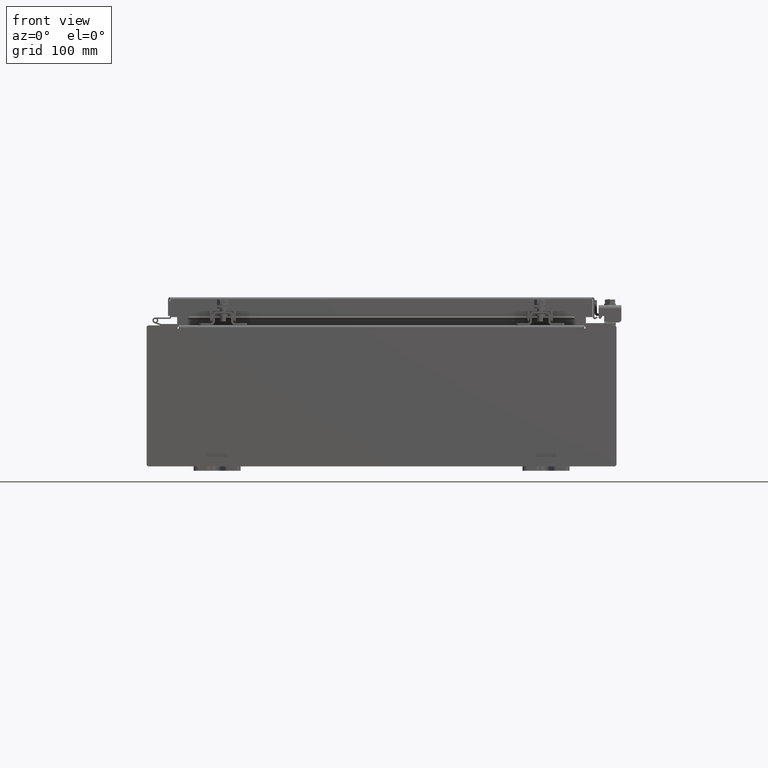
[diagram: clean part render]
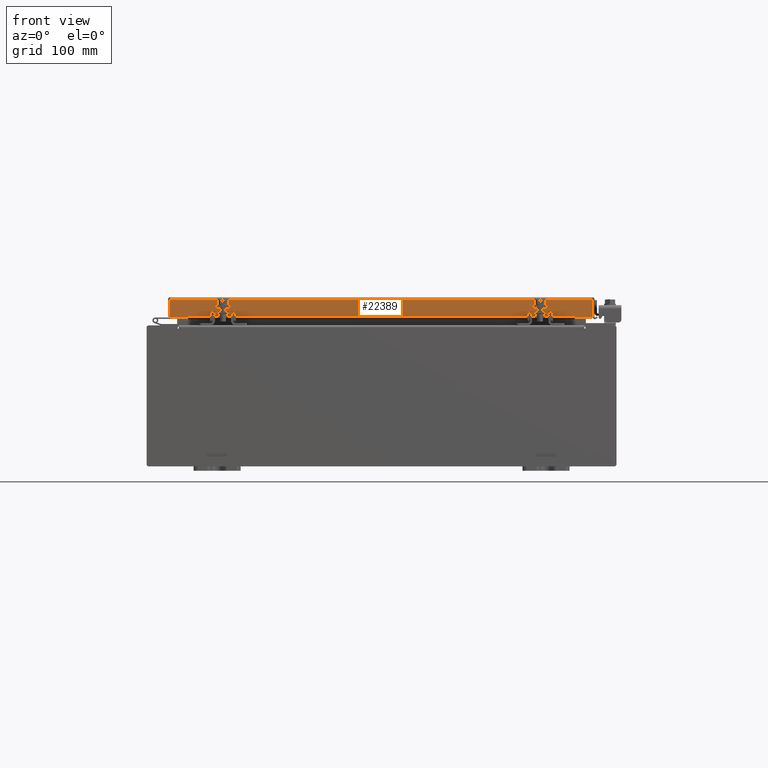
[diagram: same view with one face highlighted and labeled with its STEP entity id]
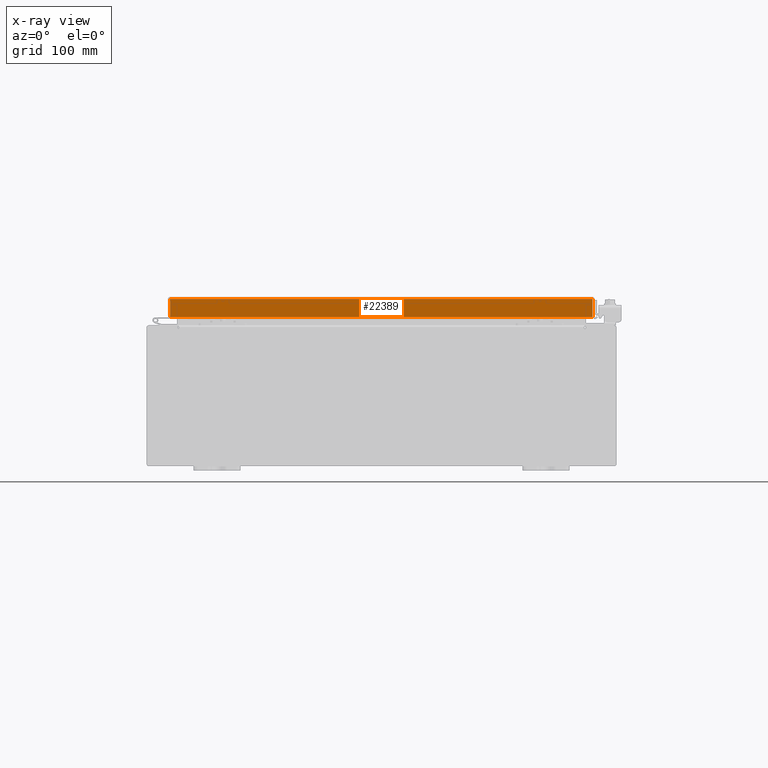
[diagram: x-ray of the same camera — body ghosted, the highlighted face saturated]
A machine part, front view. The second image highlights one B-rep face of the part: STEP entity #22389.
The next image is the same camera in x-ray: the body ghosted, the highlighted face saturated — about 0% of this face is hidden behind the body in this view.
In plain terms, the highlighted planar face has unit normal (-0, 1, -0).
Its self-contained STEP definition (entity closure, byte-faithful):
#413 = LINE ( 'NONE', #27262, #24678 ) ;
#460 = ORIENTED_EDGE ( 'NONE', *, *, #13974, .T. ) ;
#690 = ORIENTED_EDGE ( 'NONE', *, *, #15549, .F. ) ;
#1000 = DIRECTION ( 'NONE',  ( -1.000000000000000000, 0.0000000000000000000, 0.0000000000000000000 ) ) ;
#1001 = ORIENTED_EDGE ( 'NONE', *, *, #9128, .F. ) ;
#1008 = VECTOR ( 'NONE', #16131, 39.37007874015748100 ) ;
#1106 = VERTEX_POINT ( 'NONE', #2250 ) ;
#2075 = CARTESIAN_POINT ( 'NONE',  ( -8.989157864376267100, -9.093999999999999400, 2.589571694958342600E-014 ) ) ;
#2095 = PLANE ( 'NONE',  #11371 ) ;
#2250 = CARTESIAN_POINT ( 'NONE',  ( -8.989157864376267100, -9.093999999999999400, -0.08770000000000007000 ) ) ;
#3360 = VECTOR ( 'NONE', #23728, 39.37007874015748100 ) ;
#3474 = FACE_OUTER_BOUND ( 'NONE', #9861, .T. ) ;
#7649 = ORIENTED_EDGE ( 'NONE', *, *, #18676, .F. ) ;
#7721 = LINE ( 'NONE', #2075, #19127 ) ;
#7805 = LINE ( 'NONE', #18445, #1008 ) ;
#9128 = EDGE_CURVE ( 'NONE', #18207, #22903, #7805, .T. ) ;
#9501 = LINE ( 'NONE', #17052, #20931 ) ;
#9861 = EDGE_LOOP ( 'NONE', ( #690, #460, #25992, #7649, #1001, #12471 ) ) ;
#11371 = AXIS2_PLACEMENT_3D ( 'NONE', #24829, #27207, #13532 ) ;
#11646 = CARTESIAN_POINT ( 'NONE',  ( -8.989157864376267100, -9.094000000000001200, -0.8499999999999975400 ) ) ;
#12145 = VECTOR ( 'NONE', #1000, 39.37007874015748100 ) ;
#12471 = ORIENTED_EDGE ( 'NONE', *, *, #28260, .F. ) ;
#12544 = VERTEX_POINT ( 'NONE', #25323 ) ;
#13016 = CARTESIAN_POINT ( 'NONE',  ( 8.239157864376267100, -9.093999999999999400, -0.8500000000000006400 ) ) ;
#13532 = DIRECTION ( 'NONE',  ( 0.0000000000000000000, 2.818880942772360100E-015, 1.000000000000000000 ) ) ;
#13589 = DIRECTION ( 'NONE',  ( -0.0000000000000000000, -2.818880942772360100E-015, -1.000000000000000000 ) ) ;
#13659 = EDGE_CURVE ( 'NONE', #12544, #18479, #9501, .T. ) ;
#13974 = EDGE_CURVE ( 'NONE', #1106, #18479, #7721, .T. ) ;
#14642 = CARTESIAN_POINT ( 'NONE',  ( 8.239157864376268800, -9.093999999999999400, -0.8500000000000006400 ) ) ;
#15434 = LINE ( 'NONE', #16835, #3360 ) ;
#15549 = EDGE_CURVE ( 'NONE', #1106, #22318, #15434, .T. ) ;
#16131 = DIRECTION ( 'NONE',  ( -1.000000000000000000, -0.0000000000000000000, 1.203722403024570700E-016 ) ) ;
#16835 = CARTESIAN_POINT ( 'NONE',  ( 9.077999999999999400, -9.093999999999999400, -0.08770000000000007000 ) ) ;
#17052 = CARTESIAN_POINT ( 'NONE',  ( 9.077999999999999400, -9.094000000000001200, -0.8499999999999996400 ) ) ;
#18207 = VERTEX_POINT ( 'NONE', #26508 ) ;
#18208 = LINE ( 'NONE', #14642, #12145 ) ;
#18445 = CARTESIAN_POINT ( 'NONE',  ( 9.077999999999999400, -9.094000000000001200, -0.8499999999999996400 ) ) ;
#18479 = VERTEX_POINT ( 'NONE', #11646 ) ;
#18676 = EDGE_CURVE ( 'NONE', #22903, #12544, #18208, .T. ) ;
#19127 = VECTOR ( 'NONE', #24908, 39.37007874015748100 ) ;
#19351 = DIRECTION ( 'NONE',  ( -1.000000000000000000, -0.0000000000000000000, 1.203722403024570700E-016 ) ) ;
#20931 = VECTOR ( 'NONE', #19351, 39.37007874015748100 ) ;
#22318 = VERTEX_POINT ( 'NONE', #22436 ) ;
#22389 = ADVANCED_FACE ( 'NONE', ( #3474 ), #2095, .F. ) ;
#22436 = CARTESIAN_POINT ( 'NONE',  ( 8.989157864376268800, -9.093999999999999400, -0.08770000000000007000 ) ) ;
#22903 = VERTEX_POINT ( 'NONE', #13016 ) ;
#23728 = DIRECTION ( 'NONE',  ( 1.000000000000000000, 3.393150142274113600E-031, -9.248938716548949800E-046 ) ) ;
#24678 = VECTOR ( 'NONE', #13589, 39.37007874015748100 ) ;
#24829 = CARTESIAN_POINT ( 'NONE',  ( 3.085730739384078400E-030, -9.093999999999999400, 2.589571694958342600E-014 ) ) ;
#24908 = DIRECTION ( 'NONE',  ( 0.0000000000000000000, -2.818880942772360100E-015, -1.000000000000000000 ) ) ;
#25323 = CARTESIAN_POINT ( 'NONE',  ( -8.239157864376267100, -9.093999999999999400, -0.8500000000000006400 ) ) ;
#25992 = ORIENTED_EDGE ( 'NONE', *, *, #13659, .F. ) ;
#26508 = CARTESIAN_POINT ( 'NONE',  ( 8.989157864376268800, -9.094000000000001200, -0.8499999999999996400 ) ) ;
#27207 = DIRECTION ( 'NONE',  ( -3.393150142274112700E-031, 1.000000000000000000, -2.818880942772360100E-015 ) ) ;
#27262 = CARTESIAN_POINT ( 'NONE',  ( 8.989157864376268800, -9.093999999999999400, -0.07469999999999978000 ) ) ;
#28260 = EDGE_CURVE ( 'NONE', #22318, #18207, #413, .T. ) ;